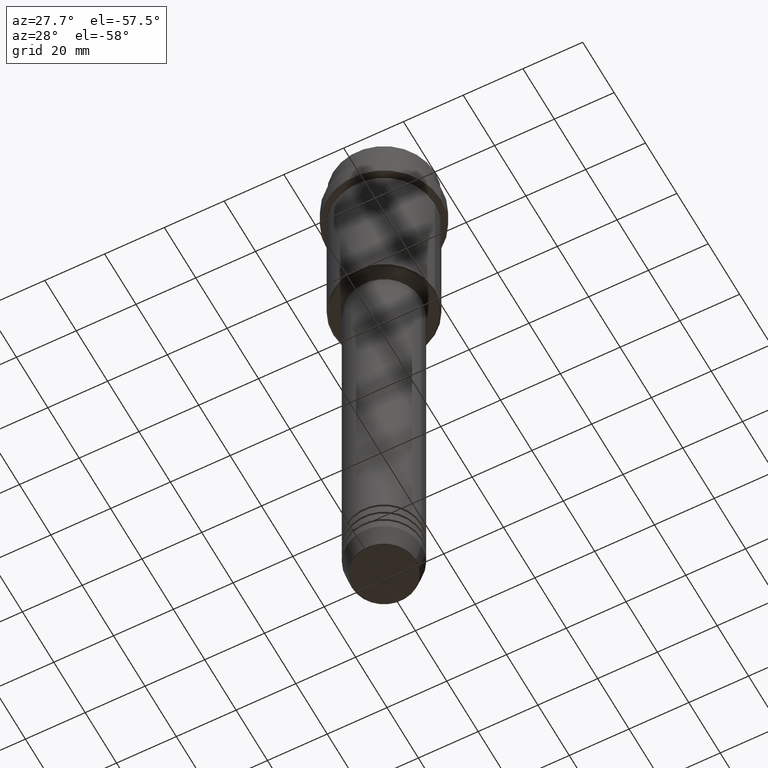
[diagram: clean part render]
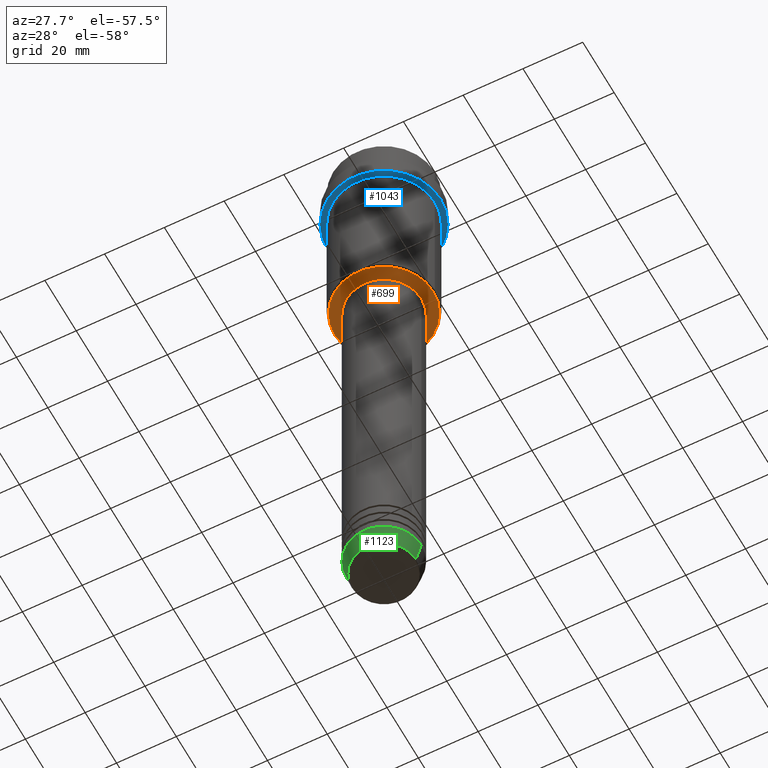
[diagram: same view with three faces highlighted in distinct colors, each labeled with its STEP entity id]
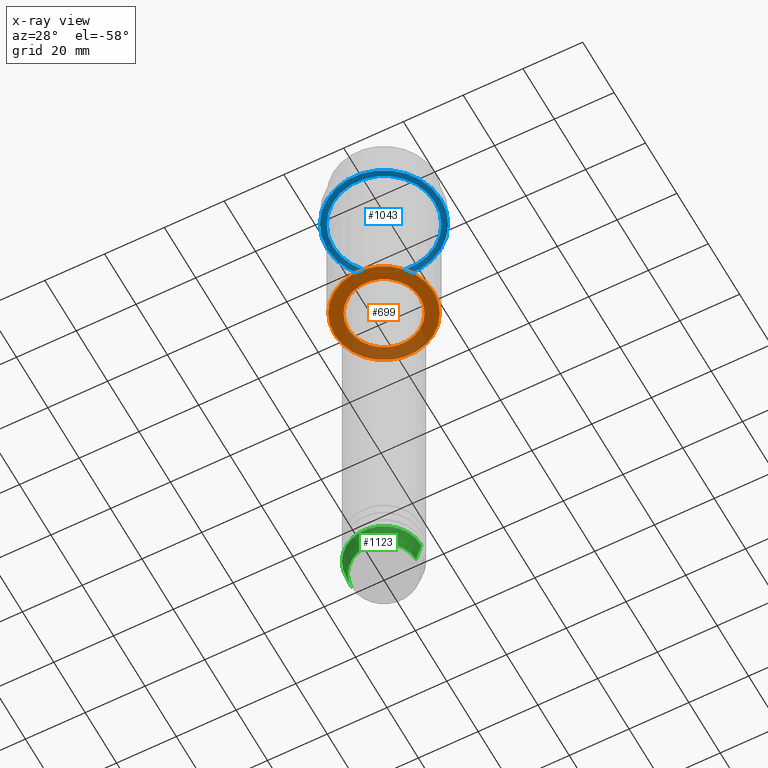
[diagram: x-ray of the same camera — body ghosted, the three highlighted faces saturated]
A machine part, auxiliary view with three faces highlighted in distinct colors.
The next image is the same camera in x-ray (body ghosted, the three faces saturated) — at least one of them is partly hidden behind the body in this view.
Their STEP definitions:

[orange] entity #699 — the highlighted planar face has unit normal (0, 0, -1).
#18 = EDGE_CURVE ( 'NONE', #248, #724, #1411, .T. ) ;
#43 = DIRECTION ( 'NONE',  ( -0.000000000000000000, -0.000000000000000000, 1.000000000000000000 ) ) ;
#51 = CARTESIAN_POINT ( 'NONE',  ( 0.000000000000000000, 0.000000000000000000, -66.00000000000000000 ) ) ;
#130 = EDGE_CURVE ( 'NONE', #724, #248, #499, .T. ) ;
#134 = CARTESIAN_POINT ( 'NONE',  ( -11.99999999999999289, 1.469576158976823158E-15, -66.00000000000000000 ) ) ;
#144 = VERTEX_POINT ( 'NONE', #134 ) ;
#166 = AXIS2_PLACEMENT_3D ( 'NONE', #51, #285, #1159 ) ;
#178 = AXIS2_PLACEMENT_3D ( 'NONE', #1143, #474, #789 ) ;
#248 = VERTEX_POINT ( 'NONE', #683 ) ;
#285 = DIRECTION ( 'NONE',  ( -0.000000000000000000, -0.000000000000000000, 1.000000000000000000 ) ) ;
#312 = DIRECTION ( 'NONE',  ( 0.000000000000000000, 0.000000000000000000, -1.000000000000000000 ) ) ;
#315 = ORIENTED_EDGE ( 'NONE', *, *, #130, .T. ) ;
#441 = VERTEX_POINT ( 'NONE', #740 ) ;
#444 = DIRECTION ( 'NONE',  ( -1.000000000000000000, 0.000000000000000000, 0.000000000000000000 ) ) ;
#474 = DIRECTION ( 'NONE',  ( 0.000000000000000000, 0.000000000000000000, -1.000000000000000000 ) ) ;
#499 = CIRCLE ( 'NONE', #178, 16.50000000000007105 ) ;
#516 = EDGE_LOOP ( 'NONE', ( #1377, #792 ) ) ;
#563 = ORIENTED_EDGE ( 'NONE', *, *, #18, .T. ) ;
#612 = CARTESIAN_POINT ( 'NONE',  ( 0.000000000000000000, 0.000000000000000000, -66.00000000000000000 ) ) ;
#623 = CIRCLE ( 'NONE', #1097, 11.99999999999999289 ) ;
#654 = EDGE_LOOP ( 'NONE', ( #315, #563 ) ) ;
#683 = CARTESIAN_POINT ( 'NONE',  ( -16.50000000000007105, 2.051283388571820042E-15, -66.00000000000000000 ) ) ;
#699 = ADVANCED_FACE ( 'NONE', ( #879, #1274 ), #1316, .T. ) ;
#701 = DIRECTION ( 'NONE',  ( 1.000000000000000000, 0.000000000000000000, 0.000000000000000000 ) ) ;
#724 = VERTEX_POINT ( 'NONE', #858 ) ;
#740 = CARTESIAN_POINT ( 'NONE',  ( 11.99999999999999289, 0.000000000000000000, -66.00000000000000000 ) ) ;
#789 = DIRECTION ( 'NONE',  ( -1.000000000000000000, 0.000000000000000000, 0.000000000000000000 ) ) ;
#792 = ORIENTED_EDGE ( 'NONE', *, *, #1248, .T. ) ;
#837 = AXIS2_PLACEMENT_3D ( 'NONE', #1200, #1371, #1090 ) ;
#858 = CARTESIAN_POINT ( 'NONE',  ( 16.50000000000007105, 0.000000000000000000, -66.00000000000000000 ) ) ;
#879 = FACE_OUTER_BOUND ( 'NONE', #654, .T. ) ;
#1045 = AXIS2_PLACEMENT_3D ( 'NONE', #1333, #312, #444 ) ;
#1090 = DIRECTION ( 'NONE',  ( -1.000000000000000000, 0.000000000000000000, -0.000000000000000000 ) ) ;
#1097 = AXIS2_PLACEMENT_3D ( 'NONE', #612, #43, #701 ) ;
#1143 = CARTESIAN_POINT ( 'NONE',  ( 0.000000000000000000, 0.000000000000000000, -66.00000000000000000 ) ) ;
#1159 = DIRECTION ( 'NONE',  ( 1.000000000000000000, 0.000000000000000000, 0.000000000000000000 ) ) ;
#1200 = CARTESIAN_POINT ( 'NONE',  ( 0.000000000000000000, 17.00000000000000000, -66.00000000000000000 ) ) ;
#1237 = EDGE_CURVE ( 'NONE', #441, #144, #1368, .T. ) ;
#1248 = EDGE_CURVE ( 'NONE', #144, #441, #623, .T. ) ;
#1274 = FACE_BOUND ( 'NONE', #516, .T. ) ;
#1316 = PLANE ( 'NONE',  #837 ) ;
#1333 = CARTESIAN_POINT ( 'NONE',  ( 0.000000000000000000, 0.000000000000000000, -66.00000000000000000 ) ) ;
#1368 = CIRCLE ( 'NONE', #166, 11.99999999999999289 ) ;
#1371 = DIRECTION ( 'NONE',  ( 0.000000000000000000, 0.000000000000000000, -1.000000000000000000 ) ) ;
#1377 = ORIENTED_EDGE ( 'NONE', *, *, #1237, .T. ) ;
#1411 = CIRCLE ( 'NONE', #1045, 16.50000000000007105 ) ;

[blue] entity #1043 — the highlighted planar face has unit normal (0, 0, -1).
#17 = AXIS2_PLACEMENT_3D ( 'NONE', #247, #266, #25 ) ;
#25 = DIRECTION ( 'NONE',  ( 1.000000000000000000, 0.000000000000000000, 0.000000000000000000 ) ) ;
#53 = CARTESIAN_POINT ( 'NONE',  ( 18.99999999999997158, 0.000000000000000000, -17.00000000000000000 ) ) ;
#54 = CARTESIAN_POINT ( 'NONE',  ( 16.99999999999996803, 2.081899558550496335E-15, -17.00000000000000000 ) ) ;
#59 = EDGE_LOOP ( 'NONE', ( #1344, #544 ) ) ;
#89 = EDGE_CURVE ( 'NONE', #952, #511, #833, .T. ) ;
#101 = CARTESIAN_POINT ( 'NONE',  ( 0.000000000000000000, 0.000000000000000000, -17.00000000000000000 ) ) ;
#109 = DIRECTION ( 'NONE',  ( -1.000000000000000000, 0.000000000000000000, 0.000000000000000000 ) ) ;
#151 = ORIENTED_EDGE ( 'NONE', *, *, #157, .T. ) ;
#152 = DIRECTION ( 'NONE',  ( -0.000000000000000000, -0.000000000000000000, 1.000000000000000000 ) ) ;
#157 = EDGE_CURVE ( 'NONE', #511, #952, #476, .T. ) ;
#170 = CARTESIAN_POINT ( 'NONE',  ( 0.000000000000000000, 0.000000000000000000, -17.00000000000000000 ) ) ;
#190 = EDGE_CURVE ( 'NONE', #447, #787, #1138, .T. ) ;
#192 = CARTESIAN_POINT ( 'NONE',  ( -16.99999999999996803, 0.000000000000000000, -17.00000000000000000 ) ) ;
#206 = DIRECTION ( 'NONE',  ( 0.000000000000000000, 0.000000000000000000, -1.000000000000000000 ) ) ;
#247 = CARTESIAN_POINT ( 'NONE',  ( 0.000000000000000000, 0.000000000000000000, -17.00000000000000000 ) ) ;
#266 = DIRECTION ( 'NONE',  ( -0.000000000000000000, -0.000000000000000000, 1.000000000000000000 ) ) ;
#279 = DIRECTION ( 'NONE',  ( 1.000000000000000000, 0.000000000000000000, 0.000000000000000000 ) ) ;
#447 = VERTEX_POINT ( 'NONE', #757 ) ;
#476 = CIRCLE ( 'NONE', #1070, 16.99999999999996803 ) ;
#491 = DIRECTION ( 'NONE',  ( -0.000000000000000000, -0.000000000000000000, 1.000000000000000000 ) ) ;
#511 = VERTEX_POINT ( 'NONE', #54 ) ;
#538 = FACE_BOUND ( 'NONE', #601, .T. ) ;
#544 = ORIENTED_EDGE ( 'NONE', *, *, #190, .F. ) ;
#554 = PLANE ( 'NONE',  #688 ) ;
#573 = CARTESIAN_POINT ( 'NONE',  ( 0.000000000000000000, 0.000000000000000000, -17.00000000000000000 ) ) ;
#601 = EDGE_LOOP ( 'NONE', ( #923, #151 ) ) ;
#653 = FACE_OUTER_BOUND ( 'NONE', #59, .T. ) ;
#688 = AXIS2_PLACEMENT_3D ( 'NONE', #856, #206, #851 ) ;
#757 = CARTESIAN_POINT ( 'NONE',  ( -18.99999999999997158, 2.326828918379967420E-15, -17.00000000000000000 ) ) ;
#769 = AXIS2_PLACEMENT_3D ( 'NONE', #101, #976, #109 ) ;
#787 = VERTEX_POINT ( 'NONE', #53 ) ;
#833 = CIRCLE ( 'NONE', #769, 16.99999999999996803 ) ;
#851 = DIRECTION ( 'NONE',  ( -1.000000000000000000, 0.000000000000000000, -0.000000000000000000 ) ) ;
#856 = CARTESIAN_POINT ( 'NONE',  ( 0.000000000000000000, 18.99999999999997158, -17.00000000000000000 ) ) ;
#923 = ORIENTED_EDGE ( 'NONE', *, *, #89, .T. ) ;
#952 = VERTEX_POINT ( 'NONE', #192 ) ;
#976 = DIRECTION ( 'NONE',  ( -0.000000000000000000, -0.000000000000000000, 1.000000000000000000 ) ) ;
#1043 = ADVANCED_FACE ( 'NONE', ( #538, #653 ), #554, .T. ) ;
#1070 = AXIS2_PLACEMENT_3D ( 'NONE', #573, #491, #1228 ) ;
#1138 = CIRCLE ( 'NONE', #17, 18.99999999999997158 ) ;
#1214 = EDGE_CURVE ( 'NONE', #787, #447, #1305, .T. ) ;
#1228 = DIRECTION ( 'NONE',  ( -1.000000000000000000, 0.000000000000000000, 0.000000000000000000 ) ) ;
#1305 = CIRCLE ( 'NONE', #1331, 18.99999999999997158 ) ;
#1331 = AXIS2_PLACEMENT_3D ( 'NONE', #170, #152, #279 ) ;
#1344 = ORIENTED_EDGE ( 'NONE', *, *, #1214, .F. ) ;

[green] entity #1123 — the highlighted conical surface has half-angle 15 deg.
#28 = EDGE_CURVE ( 'NONE', #762, #1060, #308, .T. ) ;
#36 = CARTESIAN_POINT ( 'NONE',  ( 12.50000000000000000, 0.000000000000000000, -203.0000000000000000 ) ) ;
#46 = AXIS2_PLACEMENT_3D ( 'NONE', #320, #1396, #189 ) ;
#60 = CARTESIAN_POINT ( 'NONE',  ( -10.72365507213718416, 1.422038742429750121E-15, -209.6294095225512990 ) ) ;
#83 = DIRECTION ( 'NONE',  ( -0.2588190451025213501, 3.169619151431772337E-17, 0.9659258262890680902 ) ) ;
#132 = ORIENTED_EDGE ( 'NONE', *, *, #145, .T. ) ;
#140 = CIRCLE ( 'NONE', #46, 12.50000000000000000 ) ;
#145 = EDGE_CURVE ( 'NONE', #1060, #1218, #368, .T. ) ;
#176 = CARTESIAN_POINT ( 'NONE',  ( 0.000000000000000000, 0.000000000000000000, -203.0000000000000000 ) ) ;
#189 = DIRECTION ( 'NONE',  ( 1.000000000000000000, 0.000000000000000000, 0.000000000000000000 ) ) ;
#246 = DIRECTION ( 'NONE',  ( 1.000000000000000000, 0.000000000000000000, 0.000000000000000000 ) ) ;
#264 = ORIENTED_EDGE ( 'NONE', *, *, #28, .T. ) ;
#265 = CARTESIAN_POINT ( 'NONE',  ( 12.50000000000000000, 0.000000000000000000, -203.0000000000000000 ) ) ;
#308 = CIRCLE ( 'NONE', #451, 10.72365507213718416 ) ;
#320 = CARTESIAN_POINT ( 'NONE',  ( 0.000000000000000000, 0.000000000000000000, -203.0000000000000000 ) ) ;
#343 = DIRECTION ( 'NONE',  ( -0.000000000000000000, -0.000000000000000000, 1.000000000000000000 ) ) ;
#352 = VECTOR ( 'NONE', #584, 1000.000000000000000 ) ;
#356 = AXIS2_PLACEMENT_3D ( 'NONE', #176, #1238, #246 ) ;
#368 = LINE ( 'NONE', #36, #352 ) ;
#451 = AXIS2_PLACEMENT_3D ( 'NONE', #542, #343, #678 ) ;
#542 = CARTESIAN_POINT ( 'NONE',  ( 0.000000000000000000, 0.000000000000000000, -209.6294095225512990 ) ) ;
#584 = DIRECTION ( 'NONE',  ( 0.2588190451025213501, 0.000000000000000000, 0.9659258262890680902 ) ) ;
#585 = FACE_OUTER_BOUND ( 'NONE', #1361, .T. ) ;
#588 = ORIENTED_EDGE ( 'NONE', *, *, #591, .F. ) ;
#591 = EDGE_CURVE ( 'NONE', #762, #595, #632, .T. ) ;
#595 = VERTEX_POINT ( 'NONE', #956 ) ;
#632 = LINE ( 'NONE', #1066, #817 ) ;
#678 = DIRECTION ( 'NONE',  ( 1.000000000000000000, 0.000000000000000000, 0.000000000000000000 ) ) ;
#762 = VERTEX_POINT ( 'NONE', #60 ) ;
#817 = VECTOR ( 'NONE', #83, 1000.000000000000000 ) ;
#864 = CONICAL_SURFACE ( 'NONE', #356, 12.50000000000000000, 0.2617993877991500740 ) ;
#901 = ORIENTED_EDGE ( 'NONE', *, *, #1350, .F. ) ;
#956 = CARTESIAN_POINT ( 'NONE',  ( -12.50000000000000000, 1.530808498934191521E-15, -203.0000000000000000 ) ) ;
#977 = CARTESIAN_POINT ( 'NONE',  ( 10.72365507213718416, 0.000000000000000000, -209.6294095225512990 ) ) ;
#1060 = VERTEX_POINT ( 'NONE', #977 ) ;
#1066 = CARTESIAN_POINT ( 'NONE',  ( -12.50000000000000000, 1.530808498934191521E-15, -203.0000000000000000 ) ) ;
#1123 = ADVANCED_FACE ( 'NONE', ( #585 ), #864, .T. ) ;
#1218 = VERTEX_POINT ( 'NONE', #265 ) ;
#1238 = DIRECTION ( 'NONE',  ( -0.000000000000000000, -0.000000000000000000, 1.000000000000000000 ) ) ;
#1350 = EDGE_CURVE ( 'NONE', #595, #1218, #140, .T. ) ;
#1361 = EDGE_LOOP ( 'NONE', ( #588, #264, #132, #901 ) ) ;
#1396 = DIRECTION ( 'NONE',  ( -0.000000000000000000, -0.000000000000000000, 1.000000000000000000 ) ) ;